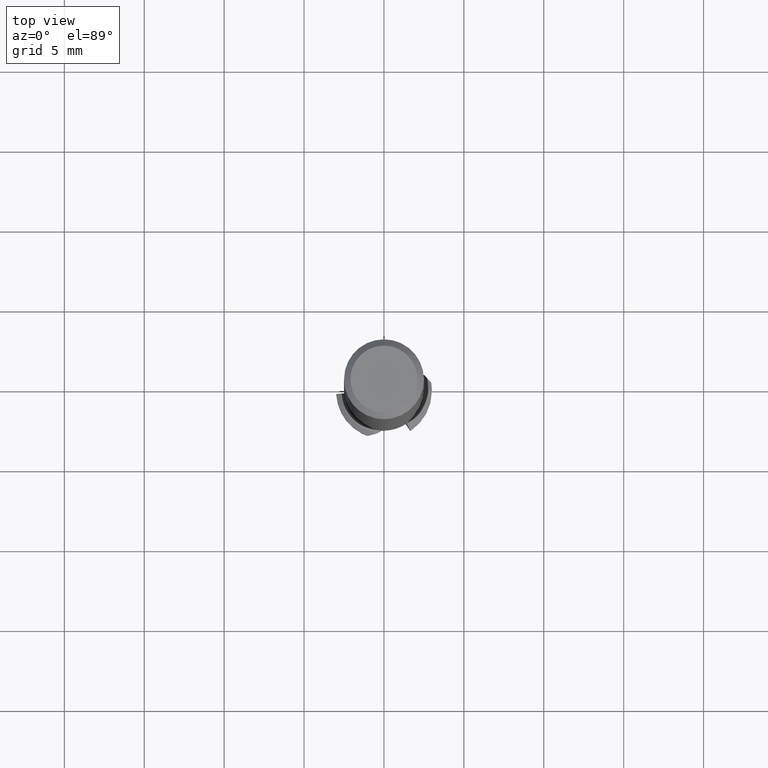
[diagram: clean part render]
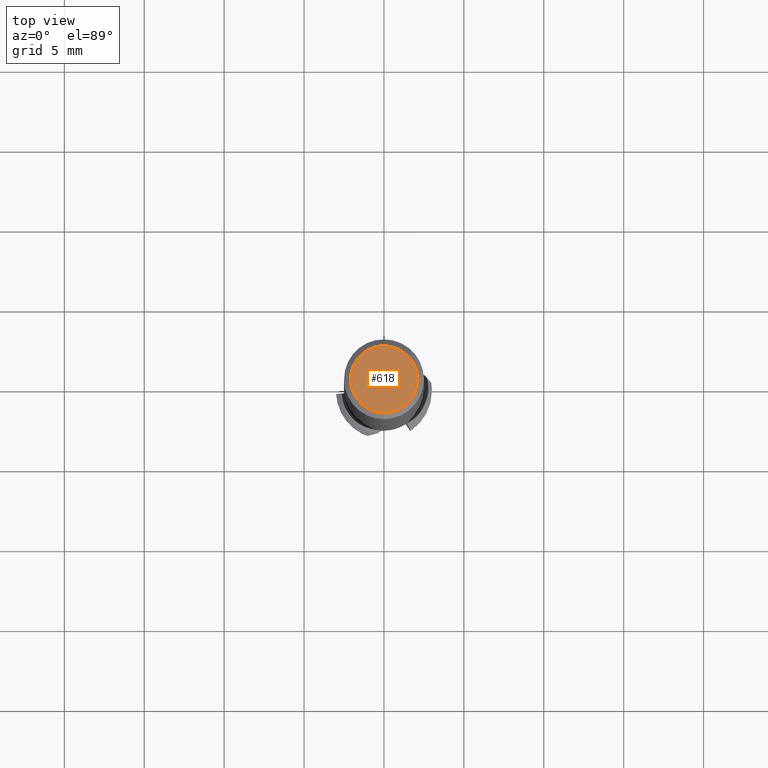
[diagram: same view with one face highlighted and labeled with its STEP entity id]
A machine part, top view. The second image highlights one B-rep face of the part: STEP entity #618.
In plain terms, the highlighted planar face has unit normal (-0, 0, 1).
Its self-contained STEP definition (entity closure, byte-faithful):
#498=EDGE_CURVE('',#1034,#912,#1364,.T.);
#618=ADVANCED_FACE('',(#1497),#1498,.T.);
#912=VERTEX_POINT('',#1820);
#1034=VERTEX_POINT('',#1951);
#1146=EDGE_CURVE('',#912,#1034,#2073,.T.);
#1364=CIRCLE('',#2342,2.1);
#1497=FACE_OUTER_BOUND('',#2568,.T.);
#1498=PLANE('',#2569);
#1820=CARTESIAN_POINT('',(0.0,2.1,0.0));
#1951=CARTESIAN_POINT('',(2.57167334302699E-016,-2.1,0.0));
#2073=CIRCLE('',#3916,2.1);
#2342=AXIS2_PLACEMENT_3D('',#4262,#4263,#4264);
#2568=EDGE_LOOP('',(#4446,#4447));
#2569=AXIS2_PLACEMENT_3D('',#4448,#4449,#4450);
#3916=AXIS2_PLACEMENT_3D('',#5076,#5077,#5078);
#4262=CARTESIAN_POINT('',(0.0,0.0,0.0));
#4263=DIRECTION('',(0.0,0.0,-1.0));
#4264=DIRECTION('',(0.0,1.0,0.0));
#4446=ORIENTED_EDGE('',*,*,#1146,.F.);
#4447=ORIENTED_EDGE('',*,*,#498,.F.);
#4448=CARTESIAN_POINT('',(0.0,1.05,0.0));
#4449=DIRECTION('',(-0.0,0.0,1.0));
#4450=DIRECTION('',(0.0,-1.0,0.0));
#5076=CARTESIAN_POINT('',(0.0,0.0,0.0));
#5077=DIRECTION('',(0.0,0.0,-1.0));
#5078=DIRECTION('',(0.0,1.0,0.0));